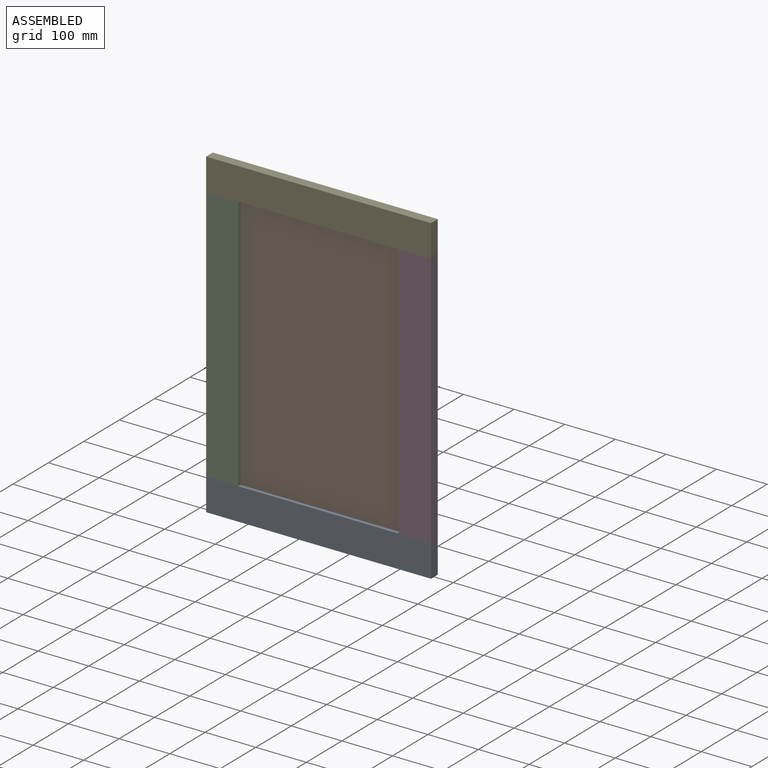
[diagram: assembled view]
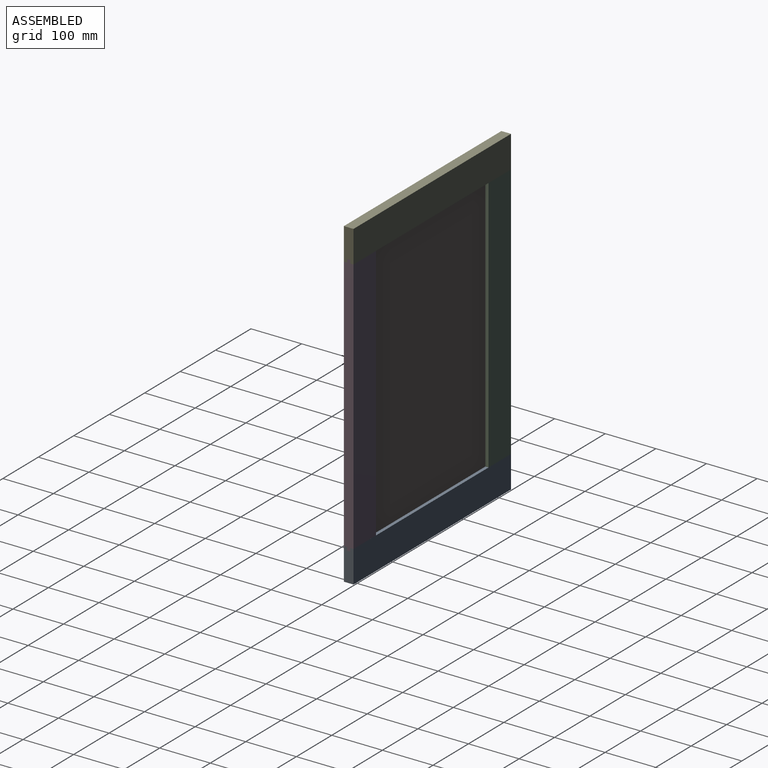
[diagram: assembled view, second angle]
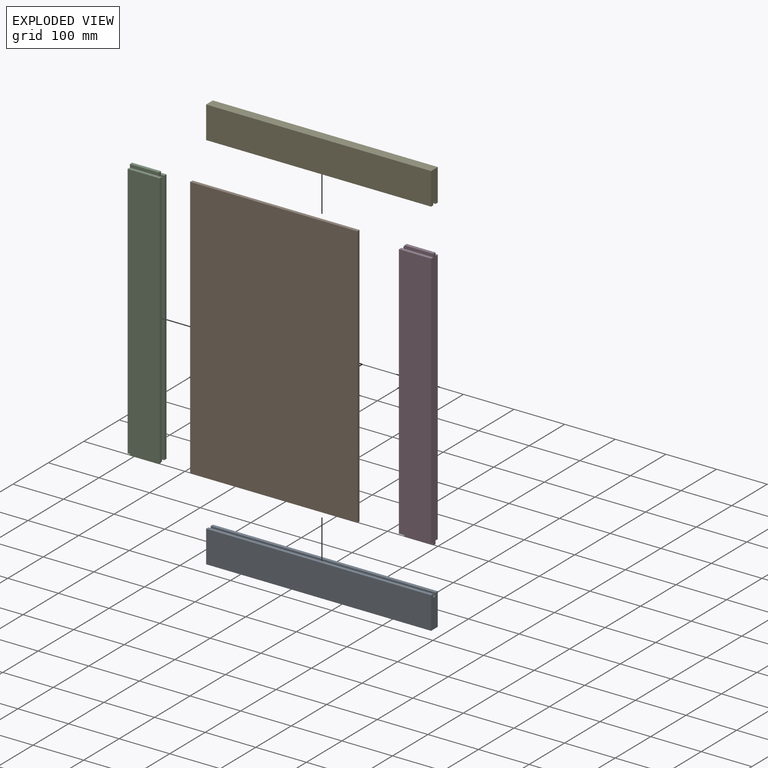
[diagram: exploded view]
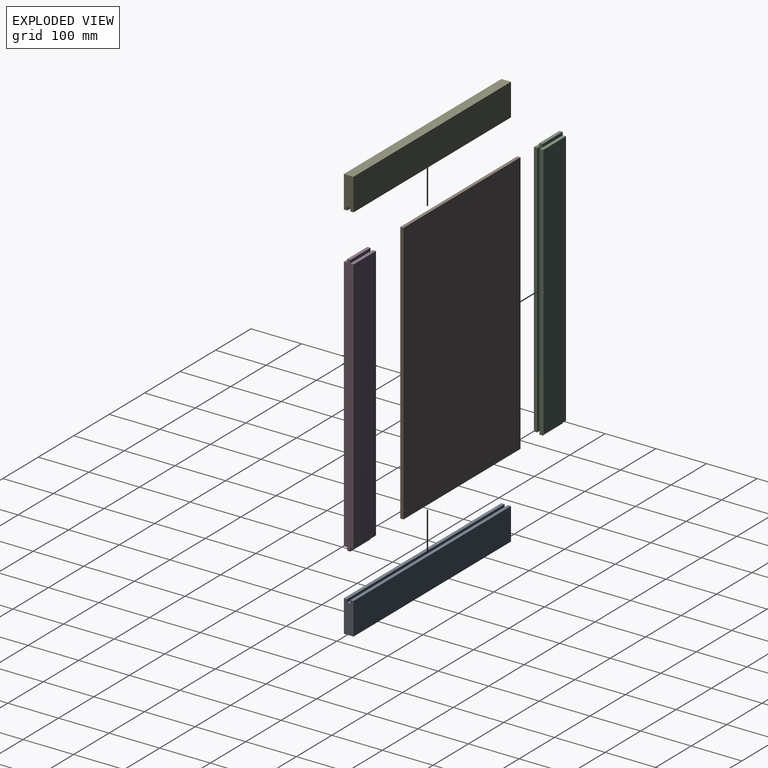
[diagram: exploded view, second angle]
ASSEMBLY  parts=5 mates=4
PART A: 10 faces, bbox 444.5x19.1x63.5 mm
  f0: plane 444.5x6.35mm, normal (0,0,1), area 2822.6mm2, adj f1,f3,f5,f8
  f1: plane 63.5x19.05mm, normal (-1,0,0), area 1169.4mm2, adj f0,f2,f4,f5,f6,f7,f8,f9
  f2: plane 444.5x19.05mm, normal (0,0,-1), area 8467.7mm2, adj f1,f3,f5,f6
  f3: plane 63.5x19.05mm, normal (1,0,0), area 1169.4mm2, adj f0,f2,f4,f5,f6,f7,f8,f9
  f4: plane 444.5x6.35mm, normal (0,0,1), area 2822.6mm2, adj f1,f3,f6,f9
  f5: plane 444.5x63.5mm, normal (0,-1,0), area 28225.7mm2, adj f0,f1,f2,f3
  f6: plane 444.5x63.5mm, normal (0,1,0), area 28225.7mm2, adj f1,f2,f3,f4
  f7: plane 444.5x6.35mm, normal (0,0,1), area 2822.6mm2, adj f1,f3,f8,f9
  f8: plane 444.5x6.35mm, normal (0,1,0), area 2822.6mm2, adj f0,f1,f3,f7
  f9: plane 444.5x6.35mm, normal (0,-1,0), area 2822.6mm2, adj f1,f3,f4,f7
PART B: 6 faces, bbox 520.7x6.4x330.2 mm
  f0: plane 520.7x6.35mm, normal (0,0,-1), area 3306.4mm2, adj f1,f3,f4,f5
  f1: plane 330.2x6.35mm, normal (1,0,0), area 2096.8mm2, adj f0,f2,f4,f5
  f2: plane 520.7x6.35mm, normal (0,0,1), area 3306.4mm2, adj f1,f3,f4,f5
  f3: plane 330.2x6.35mm, normal (-1,0,0), area 2096.8mm2, adj f0,f2,f4,f5
  f4: plane 520.7x330.2mm, normal (0,-1,0), area 171935.1mm2, adj f0,f1,f2,f3
  f5: plane 520.7x330.2mm, normal (0,1,0), area 171935.1mm2, adj f0,f1,f2,f3
PART C: 18 faces, bbox 63.5x19.1x520.7 mm
  f0: plane 508x6.35mm, normal (0,-1,0), area 3225.8mm2, adj f1,f7,f13,f15
  f1: plane 508x6.35mm, normal (-1,0,0), area 3225.8mm2, adj f0,f5,f13,f15
  f2: plane 508x6.35mm, normal (-1,0,0), area 3225.8mm2, adj f3,f8,f11,f17
  f3: plane 508x63.5mm, normal (0,-1,0), area 32258mm2, adj f2,f4,f11,f17
  f4: plane 520.7x19.05mm, normal (1,0,0), area 9758mm2, adj f3,f5,f6,f9,f10,f11,f12,f13
  f5: plane 508x63.5mm, normal (0,1,0), area 32258mm2, adj f1,f4,f13,f15
  f6: plane 57.15x6.35mm, normal (0,0,1), area 362.9mm2, adj f4,f7,f14,f16
  f7: plane 520.7x6.35mm, normal (-1,0,0), area 3306.4mm2, adj f0,f6,f8,f9,f10,f12,f14,f16
  f8: plane 508x6.35mm, normal (0,1,0), area 3225.8mm2, adj f2,f7,f11,f17
  f9: plane 57.15x6.35mm, normal (0,0,-1), area 362.9mm2, adj f4,f7,f10,f12
  f10: plane 57.15x6.35mm, normal (0,-1,0), area 362.9mm2, adj f4,f7,f9,f11
  f11: plane 63.5x6.35mm, normal (0,0,-1), area 403.2mm2, adj f2,f3,f4,f8,f10
  f12: plane 57.15x6.35mm, normal (0,1,0), area 362.9mm2, adj f4,f7,f9,f13
  f13: plane 63.5x6.35mm, normal (0,0,-1), area 403.2mm2, adj f0,f1,f4,f5,f12
  f14: plane 57.15x6.35mm, normal (0,1,0), area 362.9mm2, adj f4,f6,f7,f15
  f15: plane 63.5x6.35mm, normal (0,0,1), area 403.2mm2, adj f0,f1,f4,f5,f14
  f16: plane 57.15x6.35mm, normal (0,-1,0), area 362.9mm2, adj f4,f6,f7,f17
  f17: plane 63.5x6.35mm, normal (0,0,1), area 403.2mm2, adj f2,f3,f4,f8,f16
PART D: same geometry as C
PART E: same geometry as A
PLACE A t=(-453.54,-73.42,-146.2)mm
PLACE B rot(axis=(0,1,0),90deg) t=(-396.39,-79.77,-89.05)mm
PLACE C rot(axis=(0,0,-1),180deg) t=(-453.54,-73.42,-89.05)mm
PLACE D t=(-9.04,-92.47,-89.05)mm
PLACE E rot(axis=(1,0,0),180deg) t=(-453.54,-92.47,488.8)mm
MATE fastened E.f4 <-> C.f15  axis (0,0,-1) through (-453.54,-92.47,425.3)mm
MATE fastened D.f4 <-> E.f3  axis (1,0,0) through (-9.04,-92.47,425.3)mm
MATE fastened A.f0 <-> C.f13  axis (0,0,1) through (-453.54,-92.47,-82.7)mm
MATE fastened B.f2 <-> D.f7  axis (1,0,0) through (-66.19,-82.94,431.65)mm
